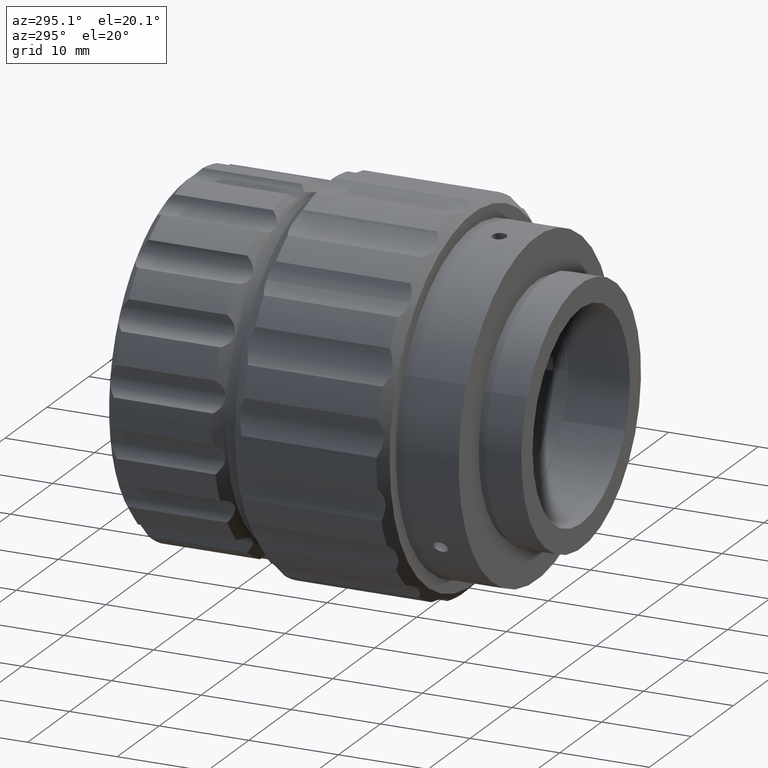
[diagram: clean part render]
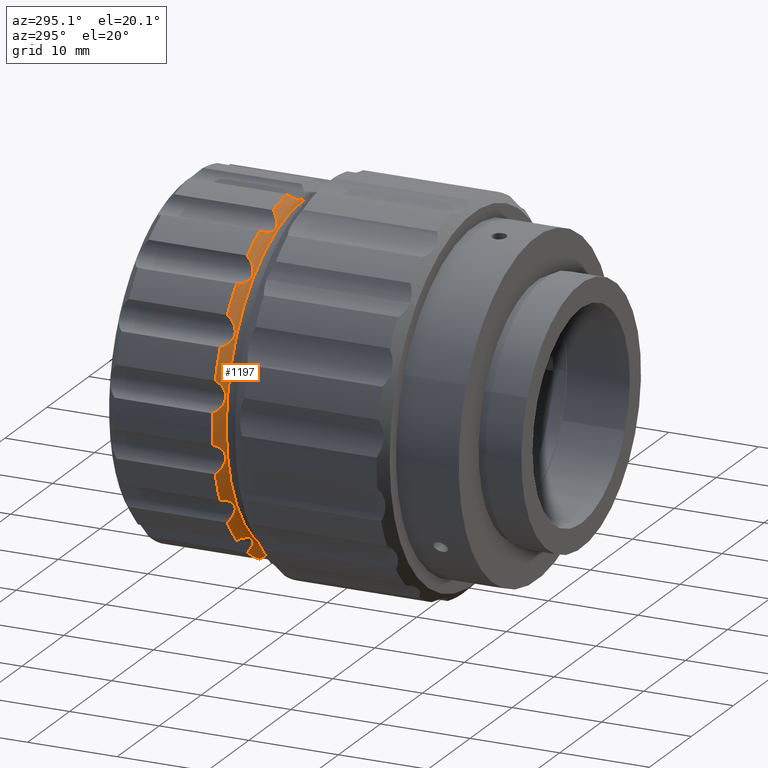
[diagram: same view with one face highlighted and labeled with its STEP entity id]
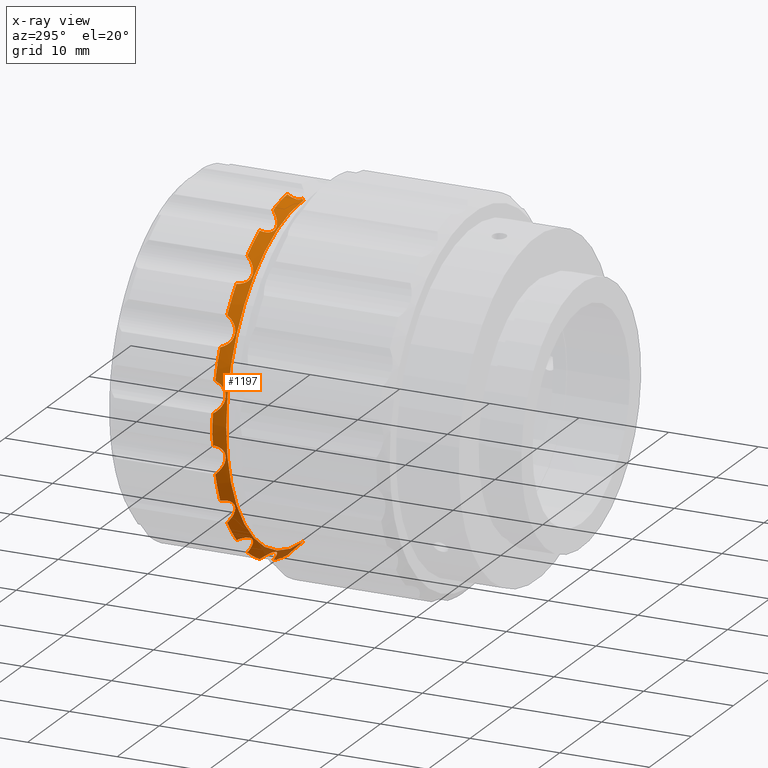
[diagram: x-ray of the same camera — body ghosted, the highlighted face saturated]
A machine part, auxiliary view. The second image highlights one B-rep face of the part: STEP entity #1197.
The next image is the same camera in x-ray: the body ghosted, the highlighted face saturated — about 5% of this face is hidden behind the body in this view.
In plain terms, the highlighted conical surface has half-angle 48.991 deg.
Its self-contained STEP definition (entity closure, byte-faithful):
#43 = CARTESIAN_POINT ( 'NONE',  ( 4.677159865975970554, -3.973528487452614222, 25.93564747629139333 ) ) ;
#62 = CARTESIAN_POINT ( 'NONE',  ( -5.371948253798003670, -4.230106375135292751, 59.79109129172136505 ) ) ;
#87 = VERTEX_POINT ( 'NONE', #7635 ) ;
#90 = CARTESIAN_POINT ( 'NONE',  ( 5.786634421897226765, -4.418320904396745519, 26.40330644533106863 ) ) ;
#115 = CARTESIAN_POINT ( 'NONE',  ( -6.221360305701106874, -4.392671165276509804, 58.85683238272568474 ) ) ;
#167 = CARTESIAN_POINT ( 'NONE',  ( -9.956924296763016713, -4.418247669615861462, 54.31427011864730758 ) ) ;
#193 = CARTESIAN_POINT ( 'NONE',  ( -12.81096954535987820, -4.068513700207486039, 42.77573742035156101 ) ) ;
#201 = ORIENTED_EDGE ( 'NONE', *, *, #8384, .T. ) ;
#220 = CARTESIAN_POINT ( 'NONE',  ( -5.199766127930072201, -3.771055225331868321, 60.57346578478398413 ) ) ;
#221 = CARTESIAN_POINT ( 'NONE',  ( -9.779764802678521107, -4.230106375135284758, 55.01349145681691510 ) ) ;
#363 = CARTESIAN_POINT ( 'NONE',  ( -10.25952300161827146, -4.392355287344224202, 35.96281535252073525 ) ) ;
#381 = CARTESIAN_POINT ( 'NONE',  ( -7.808471279802915888, -3.548755687005437753, 31.10631939944003932 ) ) ;
#411 = ORIENTED_EDGE ( 'NONE', *, *, #6683, .T. ) ;
#428 = CARTESIAN_POINT ( 'NONE',  ( -12.75781007245554832, -3.662834996469606974, 49.83897531652366553 ) ) ;
#461 = CARTESIAN_POINT ( 'NONE',  ( -10.14274525640943914, -4.418247669615867679, 35.81419411523364715 ) ) ;
#511 = CARTESIAN_POINT ( 'NONE',  ( 4.457103404541032710, -3.771268675681457072, 64.08799308601405187 ) ) ;
#531 = CARTESIAN_POINT ( 'NONE',  ( -5.215629282622811225, -3.907566260442469019, 29.43793715326682658 ) ) ;
#543 = CARTESIAN_POINT ( 'NONE',  ( 5.971701014312827738, -3.548755687005437753, 44.90330644533106863 ) ) ;
#560 = EDGE_CURVE ( 'NONE', #3509, #5643, #3505, .T. ) ;
#561 = B_SPLINE_CURVE_WITH_KNOTS ( 'NONE', 3,
 ( #1623, #5400, #7095, #5354, #4007, #4648 ),
 .UNSPECIFIED., .F., .F.,
 ( 4, 2, 4 ),
 ( 3.235133247552889068E-07, 0.0007555222576769132347, 0.001510721002029071164 ),
 .UNSPECIFIED. ) ;
#590 = CARTESIAN_POINT ( 'NONE',  ( 0.1944145688220586532, -4.327046641512397152, 27.21774438416232655 ) ) ;
#644 = CARTESIAN_POINT ( 'NONE',  ( 0.4040798112497523409, -4.230106375135290087, 62.77300455384768441 ) ) ;
#693 = AXIS2_PLACEMENT_3D ( 'NONE', #9875, #9153, #2130 ) ;
#723 = EDGE_CURVE ( 'NONE', #3050, #3434, #4897, .T. ) ;
#737 = VERTEX_POINT ( 'NONE', #6746 ) ;
#758 = ORIENTED_EDGE ( 'NONE', *, *, #4228, .T. ) ;
#762 = CARTESIAN_POINT ( 'NONE',  ( -13.45305572092108193, -3.548755687005437753, 43.19192519704508726 ) ) ;
#777 = EDGE_CURVE ( 'NONE', #5593, #7010, #4079, .T. ) ;
#792 = VERTEX_POINT ( 'NONE', #3104 ) ;
#828 = EDGE_CURVE ( 'NONE', #3434, #1717, #5090, .T. ) ;
#864 = ORIENTED_EDGE ( 'NONE', *, *, #9782, .T. ) ;
#887 = CARTESIAN_POINT ( 'NONE',  ( 5.971701014312827738, -3.548755687005437753, 44.90330644533106863 ) ) ;
#906 = CARTESIAN_POINT ( 'NONE',  ( 4.363390817103807606, -3.662877125560095148, 25.60131489701829821 ) ) ;
#929 = CARTESIAN_POINT ( 'NONE',  ( -7.808471279802826182, -3.548755687005437753, 58.70029349122219031 ) ) ;
#1000 = ORIENTED_EDGE ( 'NONE', *, *, #7515, .F. ) ;
#1053 = CARTESIAN_POINT ( 'NONE',  ( 4.457026003946652715, -3.771135249618358554, 25.71847389964025155 ) ) ;
#1056 = CARTESIAN_POINT ( 'NONE',  ( -12.59332350279357904, -4.230106375135292751, 42.52331043072143046 ) ) ;
#1082 = CARTESIAN_POINT ( 'NONE',  ( -10.94929220701702022, -4.069271803580885027, 53.32721674023608216 ) ) ;
#1097 = CARTESIAN_POINT ( 'NONE',  ( -12.21504979414907055, -4.418247669615866791, 48.29880885175551697 ) ) ;
#1105 = CARTESIAN_POINT ( 'NONE',  ( -12.86692641017151217, -3.548755687005437753, 39.86782069304594245 ) ) ;
#1142 = CARTESIAN_POINT ( 'NONE',  ( -12.33787943848981428, -4.392671165276514245, 47.75477871093554683 ) ) ;
#1150 = DIRECTION ( 'NONE',  ( -0.000000000000000000, -1.000000000000000000, -0.000000000000000000 ) ) ;
#1160 = DIRECTION ( 'NONE',  ( 0.000000000000000000, 0.6561787149247872986, 0.7546055221635041832 ) ) ;
#1174 = CARTESIAN_POINT ( 'NONE',  ( -11.54852367195953100, -3.662834996469612747, 36.64515049512208833 ) ) ;
#1197 = ADVANCED_FACE ( 'NONE', ( #2949 ), #2330, .T. ) ;
#1220 = CARTESIAN_POINT ( 'NONE',  ( -11.40029830523349474, -3.771055225331873206, 36.62265360417551818 ) ) ;
#1227 = DIRECTION ( 'NONE',  ( -0.000000000000000000, -1.000000000000000000, -0.000000000000000000 ) ) ;
#1236 = CARTESIAN_POINT ( 'NONE',  ( -12.28772210715284352, -4.230106375135296304, 49.01645409908781659 ) ) ;
#1273 = DIRECTION ( 'NONE',  ( 0.000000000000000000, 0.000000000000000000, 1.000000000000000000 ) ) ;
#1382 = CARTESIAN_POINT ( 'NONE',  ( -7.072934661501564690, -4.053467165836581287, 31.19939536139204606 ) ) ;
#1440 = CARTESIAN_POINT ( 'NONE',  ( -2.013009896214547734, -3.771348872113315487, 62.41293408283464572 ) ) ;
#1487 = CARTESIAN_POINT ( 'NONE',  ( -5.480984701344065790, -4.314917560482603776, 30.22280773866551584 ) ) ;
#1494 = CARTESIAN_POINT ( 'NONE',  ( 0.7009620014143991273, -3.973384359290080159, 63.17003920369418069 ) ) ;
#1541 = CARTESIAN_POINT ( 'NONE',  ( 0.2765343351341064126, -4.298448279280489004, 62.65053004991393237 ) ) ;
#1550 = B_SPLINE_CURVE_WITH_KNOTS ( 'NONE', 3,
 ( #5909, #1174, #1220, #4205, #1922, #5041, #7295, #363, #461, #2690, #2022, #5757, #8893, #6576, #3552, #9712, #8992, #2739 ),
 .UNSPECIFIED., .F., .F.,
 ( 4, 2, 2, 2, 2, 2, 2, 2, 4 ),
 ( 3.235133247597310122E-07, 0.0005539330953528013354, 0.001107542677380842812, 0.001661152259408884288, 0.002214761841436926199, 0.002768371423464967892, 0.003321981005493009152, 0.003875590587521050845, 0.004429200169549092105 ),
 .UNSPECIFIED. ) ;
#1623 = CARTESIAN_POINT ( 'NONE',  ( -2.258577716728105145, -3.548755687005437753, 27.22528302614261619 ) ) ;
#1642 = VERTEX_POINT ( 'NONE', #9030 ) ;
#1643 = ORIENTED_EDGE ( 'NONE', *, *, #4993, .T. ) ;
#1707 = CARTESIAN_POINT ( 'NONE',  ( -13.31638051958461944, -3.662834996469610527, 43.13544799591724654 ) ) ;
#1717 = VERTEX_POINT ( 'NONE', #9889 ) ;
#1737 = EDGE_CURVE ( 'NONE', #4889, #8536, #9195, .T. ) ;
#1752 = CARTESIAN_POINT ( 'NONE',  ( 5.599441832286628618, -4.392481889549249452, 26.37654007759314823 ) ) ;
#1825 = CARTESIAN_POINT ( 'NONE',  ( -9.807548804179457846, -3.973384359290082823, 55.50846983743190322 ) ) ;
#1847 = CARTESIAN_POINT ( 'NONE',  ( -12.20893757984293870, -4.392671165276513356, 41.32056856099485032 ) ) ;
#1922 = CARTESIAN_POINT ( 'NONE',  ( -10.95056444640559334, -4.068513700207488704, 36.47999385548708773 ) ) ;
#1980 = CARTESIAN_POINT ( 'NONE',  ( 5.971701014312827738, -3.548755687005437753, 44.90330644533106863 ) ) ;
#1995 = EDGE_CURVE ( 'NONE', #87, #5593, #6368, .T. ) ;
#2004 = CARTESIAN_POINT ( 'NONE',  ( -12.49485770127046891, -4.298448279280493445, 42.37643518256236064 ) ) ;
#2022 = CARTESIAN_POINT ( 'NONE',  ( -9.887142389091856387, -4.392671165276510692, 35.31848947548485285 ) ) ;
#2030 = ORIENTED_EDGE ( 'NONE', *, *, #3939, .T. ) ;
#2055 = CARTESIAN_POINT ( 'NONE',  ( -12.48228384711124583, -3.974377090660913936, 40.33588439322735297 ) ) ;
#2069 = VERTEX_POINT ( 'NONE', #3162 ) ;
#2092 = CARTESIAN_POINT ( 'NONE',  ( -1.039711923863394505, -4.302516684558123750, 27.63960771921995274 ) ) ;
#2130 = DIRECTION ( 'NONE',  ( 0.000000000000000000, 0.000000000000000000, -1.000000000000000000 ) ) ;
#2198 = B_SPLINE_CURVE_WITH_KNOTS ( 'NONE', 3,
 ( #7203, #3966, #8650, #1825, #3354, #221, #7105, #6427, #167, #7978, #2542, #6329, #8023, #1082, #8747, #5712, #7050, #5612 ),
 .UNSPECIFIED., .F., .F.,
 ( 4, 2, 2, 2, 2, 2, 2, 2, 4 ),
 ( 3.235133254005463770E-07, 0.0005539330953534425325, 0.001107542677381484009, 0.001661152259409525052, 0.002214761841437565878, 0.002768371423465607571, 0.003321981005493648397, 0.003875590587521689657, 0.004429200169549729615 ),
 .UNSPECIFIED. ) ;
#2222 = ORIENTED_EDGE ( 'NONE', *, *, #4814, .T. ) ;
#2244 = CARTESIAN_POINT ( 'NONE',  ( -6.660543839100342645, -4.253603731953620404, 31.12885731336848849 ) ) ;
#2330 = CONICAL_SURFACE ( 'NONE', #7511, 19.50000000000000355, 0.8550527371260157050 ) ;
#2445 = CARTESIAN_POINT ( 'NONE',  ( -5.262163089460625720, -4.068513700207486039, 60.10579178843199344 ) ) ;
#2460 = CARTESIAN_POINT ( 'NONE',  ( 5.971701014312827738, -3.548755687005437753, 44.90330644533106863 ) ) ;
#2542 = CARTESIAN_POINT ( 'NONE',  ( -10.25841567390049747, -4.392671165276506251, 53.84505922239571873 ) ) ;
#2587 = VERTEX_POINT ( 'NONE', #4849 ) ;
#2655 = CARTESIAN_POINT ( 'NONE',  ( -12.93152272895156507, -3.974377090660908607, 46.92296819418837828 ) ) ;
#2690 = CARTESIAN_POINT ( 'NONE',  ( -9.957612782937662388, -4.418393815353469201, 35.49383860657146528 ) ) ;
#2739 = CARTESIAN_POINT ( 'NONE',  ( -10.00858060349922241, -3.548755687005437753, 33.72830759005514523 ) ) ;
#2742 = DIRECTION ( 'NONE',  ( 0.000000000000000000, 0.000000000000000000, -1.000000000000000000 ) ) ;
#2769 = CARTESIAN_POINT ( 'NONE',  ( 4.284008927287831447, -3.548755687005437753, 64.33013571362374705 ) ) ;
#2808 = ORIENTED_EDGE ( 'NONE', *, *, #6010, .T. ) ;
#2837 = VERTEX_POINT ( 'NONE', #3709 ) ;
#2842 = CARTESIAN_POINT ( 'NONE',  ( 4.284008927287831447, -3.548755687005437753, 64.33013571362374705 ) ) ;
#2857 = CARTESIAN_POINT ( 'NONE',  ( -5.206601509068879530, -3.643741853323062330, 29.05873056079382266 ) ) ;
#2904 = ORIENTED_EDGE ( 'NONE', *, *, #1995, .T. ) ;
#2914 = CARTESIAN_POINT ( 'NONE',  ( -0.5287195526393428935, -4.418393815353464760, 62.22455511604391631 ) ) ;
#2949 = FACE_OUTER_BOUND ( 'NONE', #9814, .T. ) ;
#2963 = CARTESIAN_POINT ( 'NONE',  ( -0.5663486802192483349, -4.410044193024122983, 27.58654335925605139 ) ) ;
#3011 = CARTESIAN_POINT ( 'NONE',  ( -7.205444984261414554, -3.973601794820913469, 31.19939536139216330 ) ) ;
#3018 = CARTESIAN_POINT ( 'NONE',  ( -2.258577716727978579, -3.548755687005437753, 62.58132986451957436 ) ) ;
#3050 = VERTEX_POINT ( 'NONE', #7042 ) ;
#3061 = CARTESIAN_POINT ( 'NONE',  ( -5.867632561930433255, -4.423066189991026853, 30.69408168806941717 ) ) ;
#3085 = AXIS2_PLACEMENT_3D ( 'NONE', #2460, #3982, #5530 ) ;
#3103 = LINE ( 'NONE', #5461, #10051 ) ;
#3104 = CARTESIAN_POINT ( 'NONE',  ( -12.86692641017151217, -3.548755687005437753, 39.86782069304594245 ) ) ;
#3108 = AXIS2_PLACEMENT_3D ( 'NONE', #7162, #7110, #6282 ) ;
#3120 = CIRCLE ( 'NONE', #8802, 19.50000000000000000 ) ;
#3135 = CARTESIAN_POINT ( 'NONE',  ( -7.808471279802826182, -3.548755687005437753, 58.70029349122219031 ) ) ;
#3162 = CARTESIAN_POINT ( 'NONE',  ( -11.69627269052421070, -3.548755687005437753, 36.65147603231439177 ) ) ;
#3198 = AXIS2_PLACEMENT_3D ( 'NONE', #3981, #8508, #8664 ) ;
#3235 = EDGE_CURVE ( 'NONE', #4811, #3050, #6456, .T. ) ;
#3271 = AXIS2_PLACEMENT_3D ( 'NONE', #4854, #1227, #4307 ) ;
#3291 = ORIENTED_EDGE ( 'NONE', *, *, #9466, .T. ) ;
#3294 = EDGE_CURVE ( 'NONE', #8051, #87, #6330, .T. ) ;
#3296 = DIRECTION ( 'NONE',  ( 0.000000000000000000, 0.000000000000000000, -1.000000000000000000 ) ) ;
#3315 = AXIS2_PLACEMENT_3D ( 'NONE', #887, #7056, #4020 ) ;
#3354 = CARTESIAN_POINT ( 'NONE',  ( -9.784234402868552394, -4.068513700207480710, 55.34676192897524771 ) ) ;
#3417 = CARTESIAN_POINT ( 'NONE',  ( -13.31630365927038895, -3.662899149816271294, 46.67119665511836502 ) ) ;
#3434 = VERTEX_POINT ( 'NONE', #9473 ) ;
#3466 = CARTESIAN_POINT ( 'NONE',  ( -7.205444984261414554, -3.973601794820913469, 31.19939536139216330 ) ) ;
#3469 = EDGE_CURVE ( 'NONE', #792, #2069, #8133, .T. ) ;
#3484 = B_SPLINE_CURVE_WITH_KNOTS ( 'NONE', 3,
 ( #8169, #7499, #3650, #6678, #9763, #8942, #5808, #511, #5709, #2842 ),
 .UNSPECIFIED., .F., .F.,
 ( 4, 2, 2, 2, 4 ),
 ( 0.002215579625776019183, 0.002768984761719295654, 0.003322389897662572124, 0.003875795033605848160, 0.004429200169549125064 ),
 .UNSPECIFIED. ) ;
#3505 = CIRCLE ( 'NONE', #9028, 19.50000000000000000 ) ;
#3509 = VERTEX_POINT ( 'NONE', #4165 ) ;
#3514 = AXIS2_PLACEMENT_3D ( 'NONE', #4054, #4841, #3296 ) ;
#3519 = CARTESIAN_POINT ( 'NONE',  ( -12.48312310502022804, -3.973384359290088153, 49.47207894262480465 ) ) ;
#3529 = CARTESIAN_POINT ( 'NONE',  ( -12.28746054413084821, -4.230513494785397732, 40.79113171102594038 ) ) ;
#3552 = CARTESIAN_POINT ( 'NONE',  ( -9.807222039172902583, -3.974377090660905498, 34.29969909972036390 ) ) ;
#3570 = CARTESIAN_POINT ( 'NONE',  ( -12.27915064326802330, -4.418393815353469201, 47.93440143442403212 ) ) ;
#3650 = CARTESIAN_POINT ( 'NONE',  ( 5.599763903776332263, -4.392544022178459961, 63.43000826587537233 ) ) ;
#3657 = DIRECTION ( 'NONE',  ( 0.000000000000000000, 1.000000000000000000, 0.000000000000000000 ) ) ;
#3671 = CARTESIAN_POINT ( 'NONE',  ( 0.5930888864356698154, -4.095029038024961210, 26.81359678545231517 ) ) ;
#3709 = CARTESIAN_POINT ( 'NONE',  ( 4.284008927287830559, -3.548755687005437753, 25.47647717703838310 ) ) ;
#3722 = CARTESIAN_POINT ( 'NONE',  ( -0.9225061060174057914, -4.340867094940177751, 27.63960771921995274 ) ) ;
#3781 = CARTESIAN_POINT ( 'NONE',  ( -0.01444145795316569870, -4.392355287344217984, 62.44044168281193663 ) ) ;
#3797 = CARTESIAN_POINT ( 'NONE',  ( -5.222776989880073550, -3.548755687005437753, 60.86994861623354325 ) ) ;
#3844 = CIRCLE ( 'NONE', #3514, 18.35000000000000142 ) ;
#3870 = DIRECTION ( 'NONE',  ( 9.241252373364524550E-17, 0.6561787149247872986, -0.7546055221635041832 ) ) ;
#3917 = CARTESIAN_POINT ( 'NONE',  ( -7.520118261576554275, -3.771348872113314599, 58.62604235896956340 ) ) ;
#3939 = EDGE_CURVE ( 'NONE', #1717, #4889, #561, .T. ) ;
#3945 = ORIENTED_EDGE ( 'NONE', *, *, #3469, .T. ) ;
#3965 = CARTESIAN_POINT ( 'NONE',  ( -5.651486401293491113, -4.392355287344218873, 59.33544171138407108 ) ) ;
#3966 = CARTESIAN_POINT ( 'NONE',  ( -9.940184170117930762, -3.662834996469602089, 55.94718812854971191 ) ) ;
#3981 = CARTESIAN_POINT ( 'NONE',  ( 5.971701014312827738, -3.548755687005437753, 44.90330644533106863 ) ) ;
#3982 = DIRECTION ( 'NONE',  ( -0.000000000000000000, -1.000000000000000000, -0.000000000000000000 ) ) ;
#4007 = CARTESIAN_POINT ( 'NONE',  ( -1.282341543983721133, -4.223126892537021781, 27.63960771921995274 ) ) ;
#4020 = DIRECTION ( 'NONE',  ( 0.000000000000000000, 0.000000000000000000, -1.000000000000000000 ) ) ;
#4041 = CARTESIAN_POINT ( 'NONE',  ( -13.18478862612481350, -3.771055225331871430, 43.06361177233198134 ) ) ;
#4047 = ORIENTED_EDGE ( 'NONE', *, *, #1737, .T. ) ;
#4054 = CARTESIAN_POINT ( 'NONE',  ( 5.971701014312827738, -4.548755687005437309, 44.90330644533106863 ) ) ;
#4064 = CARTESIAN_POINT ( 'NONE',  ( -5.203350080123193777, -3.662834996469610083, 60.72334581924488361 ) ) ;
#4079 = B_SPLINE_CURVE_WITH_KNOTS ( 'NONE', 3,
 ( #5363, #4064, #220, #8696, #2445, #62, #5462, #3965, #6224, #7869, #115, #6999, #4803, #7774, #8594, #3917, #9415, #929 ),
 .UNSPECIFIED., .F., .F.,
 ( 4, 2, 2, 2, 2, 2, 2, 2, 4 ),
 ( 3.235133247590405216E-07, 0.0005539330953528004680, 0.001107542677380841945, 0.001661152259408883421, 0.002214761841436924898, 0.002768371423464966157, 0.003321981005493007851, 0.003875590587521049544, 0.004429200169549091237 ),
 .UNSPECIFIED. ) ;
#4154 = EDGE_CURVE ( 'NONE', #8536, #2837, #5518, .T. ) ;
#4165 = CARTESIAN_POINT ( 'NONE',  ( -13.45305572092107127, -3.548755687005437753, 46.61468769361717790 ) ) ;
#4175 = CARTESIAN_POINT ( 'NONE',  ( -12.80997845856519390, -4.069271803580892133, 47.03187226084381933 ) ) ;
#4205 = CARTESIAN_POINT ( 'NONE',  ( -11.10226480377737879, -3.973384359290088153, 36.54065694590614299 ) ) ;
#4228 = EDGE_CURVE ( 'NONE', #5834, #8051, #8140, .T. ) ;
#4232 = DIRECTION ( 'NONE',  ( 0.000000000000000000, 0.000000000000000000, -1.000000000000000000 ) ) ;
#4252 = ORIENTED_EDGE ( 'NONE', *, *, #828, .T. ) ;
#4307 = DIRECTION ( 'NONE',  ( 0.000000000000000000, 0.000000000000000000, -1.000000000000000000 ) ) ;
#4368 = CARTESIAN_POINT ( 'NONE',  ( -5.235328692796350047, -3.990168597077730528, 29.56955616298906264 ) ) ;
#4438 = DIRECTION ( 'NONE',  ( -0.000000000000000000, -1.000000000000000000, -0.000000000000000000 ) ) ;
#4475 = CARTESIAN_POINT ( 'NONE',  ( -0.7136417918881918787, -4.392671165276510692, 62.18560438289540571 ) ) ;
#4493 = DIRECTION ( 'NONE',  ( 0.000000000000000000, 0.000000000000000000, -1.000000000000000000 ) ) ;
#4497 = VECTOR ( 'NONE', #1160, 1000.000000000000000 ) ;
#4525 = CARTESIAN_POINT ( 'NONE',  ( -1.248670676121527823, -4.230513494785393291, 62.17099866272882025 ) ) ;
#4558 = VERTEX_POINT ( 'NONE', #8709 ) ;
#4642 = CARTESIAN_POINT ( 'NONE',  ( 5.971701014312830402, -4.548755687005437309, 63.25330644533107005 ) ) ;
#4648 = CARTESIAN_POINT ( 'NONE',  ( -1.039711923863394505, -4.302516684558123750, 27.63960771921995274 ) ) ;
#4704 = CARTESIAN_POINT ( 'NONE',  ( 5.971701014312827738, -4.548755687005437309, 26.55330644533106721 ) ) ;
#4732 = CARTESIAN_POINT ( 'NONE',  ( 5.092149987826767976, -4.230295088982533258, 26.20724258423378217 ) ) ;
#4803 = CARTESIAN_POINT ( 'NONE',  ( -6.719127549617737394, -4.230513494785394180, 58.66011683959502676 ) ) ;
#4811 = VERTEX_POINT ( 'NONE', #8250 ) ;
#4814 = EDGE_CURVE ( 'NONE', #9172, #737, #3120, .T. ) ;
#4820 = ORIENTED_EDGE ( 'NONE', *, *, #560, .T. ) ;
#4827 = CARTESIAN_POINT ( 'NONE',  ( 5.253986418364525512, -4.298633637632979010, 26.27870336994616451 ) ) ;
#4841 = DIRECTION ( 'NONE',  ( -0.000000000000000000, -1.000000000000000000, -0.000000000000000000 ) ) ;
#4849 = CARTESIAN_POINT ( 'NONE',  ( -10.00858060349914602, -3.548755687005437753, 56.07830530060711283 ) ) ;
#4854 = CARTESIAN_POINT ( 'NONE',  ( 5.971701014312827738, -3.548755687005437753, 44.90330644533106863 ) ) ;
#4871 = CARTESIAN_POINT ( 'NONE',  ( 4.284008927287830559, -3.548755687005437753, 25.47647717703838310 ) ) ;
#4889 = VERTEX_POINT ( 'NONE', #7899 ) ;
#4897 = B_SPLINE_CURVE_WITH_KNOTS ( 'NONE', 3,
 ( #3011, #1382, #6694, #2244, #10037, #7466, #7518, #3061, #8441, #7675, #1487, #6132, #5106, #4368, #531, #9831, #2857, #5924 ),
 .UNSPECIFIED., .F., .F.,
 ( 4, 2, 2, 2, 2, 2, 2, 2, 4 ),
 ( 0.0007436451293488567389, 0.001204339509373890307, 0.001665033889398923658, 0.002125728269423957442, 0.002586422649448990793, 0.003047117029474024144, 0.003507811409499057495, 0.003968505789524090846, 0.004429200169549124197 ),
 .UNSPECIFIED. ) ;
#4993 = EDGE_CURVE ( 'NONE', #2587, #9172, #2198, .T. ) ;
#5023 = CARTESIAN_POINT ( 'NONE',  ( 0.9132458839442139098, -3.548755687005437753, 26.07083364715484208 ) ) ;
#5041 = CARTESIAN_POINT ( 'NONE',  ( -10.65970895109022365, -4.230106375135294527, 36.31722940671723165 ) ) ;
#5063 = CARTESIAN_POINT ( 'NONE',  ( -7.619150267689664524, -3.701927921407845989, 31.16618835401031262 ) ) ;
#5090 = CIRCLE ( 'NONE', #8531, 19.50000000000000000 ) ;
#5106 = CARTESIAN_POINT ( 'NONE',  ( -5.303299011562976339, -4.138542128765046790, 29.83202315044504616 ) ) ;
#5109 = CARTESIAN_POINT ( 'NONE',  ( -12.59274495590165266, -4.230513494785399509, 47.28412724534775435 ) ) ;
#5133 = CARTESIAN_POINT ( 'NONE',  ( 5.971701014312827738, -3.548755687005437753, 44.90330644533106863 ) ) ;
#5163 = CARTESIAN_POINT ( 'NONE',  ( 0.4568445305703507930, -4.205327521911409683, 26.98669825494011221 ) ) ;
#5164 = CARTESIAN_POINT ( 'NONE',  ( 0.9132458839443395870, -3.548755687005437753, 63.73577924350733070 ) ) ;
#5267 = CARTESIAN_POINT ( 'NONE',  ( -0.8044406430298168820, -4.370453667486703608, 27.62940131939334876 ) ) ;
#5321 = CARTESIAN_POINT ( 'NONE',  ( 0.8334659206107009055, -3.771055225331862548, 63.44930633630226424 ) ) ;
#5354 = CARTESIAN_POINT ( 'NONE',  ( -1.509160600168722111, -4.110216990204725640, 27.59588151850183024 ) ) ;
#5363 = CARTESIAN_POINT ( 'NONE',  ( -5.222776989880073550, -3.548755687005437753, 60.86994861623354325 ) ) ;
#5385 = EDGE_CURVE ( 'NONE', #7981, #10047, #3844, .T. ) ;
#5400 = CARTESIAN_POINT ( 'NONE',  ( -2.098635104727121892, -3.704375376513520557, 27.34822659330187378 ) ) ;
#5461 = CARTESIAN_POINT ( 'NONE',  ( 5.971701014312830402, -3.548755687005437753, 25.40330644533106863 ) ) ;
#5462 = CARTESIAN_POINT ( 'NONE',  ( -5.449913049129346376, -4.298448279280489892, 59.63237978211881796 ) ) ;
#5473 = ORIENTED_EDGE ( 'NONE', *, *, #3235, .T. ) ;
#5502 = ORIENTED_EDGE ( 'NONE', *, *, #9906, .T. ) ;
#5518 = CIRCLE ( 'NONE', #3271, 19.50000000000000000 ) ;
#5530 = DIRECTION ( 'NONE',  ( 0.000000000000000000, 0.000000000000000000, -1.000000000000000000 ) ) ;
#5588 = CARTESIAN_POINT ( 'NONE',  ( 4.805612467506239049, -4.068682995440005001, 26.03671793740476303 ) ) ;
#5593 = VERTEX_POINT ( 'NONE', #3797 ) ;
#5612 = CARTESIAN_POINT ( 'NONE',  ( -11.69627269052415208, -3.548755687005437753, 53.15513685834787339 ) ) ;
#5643 = VERTEX_POINT ( 'NONE', #762 ) ;
#5647 = CIRCLE ( 'NONE', #3085, 19.50000000000000000 ) ;
#5709 = CARTESIAN_POINT ( 'NONE',  ( 4.363376815874540959, -3.662856997034180662, 64.20532001228738750 ) ) ;
#5712 = CARTESIAN_POINT ( 'NONE',  ( -11.39991410422043927, -3.771348872113315487, 53.18398615790720640 ) ) ;
#5757 = CARTESIAN_POINT ( 'NONE',  ( -9.798931431818187932, -4.298905402658923514, 34.97020497928114224 ) ) ;
#5776 = CARTESIAN_POINT ( 'NONE',  ( -12.49417888365377571, -4.298905402658929731, 47.43127639762012393 ) ) ;
#5808 = CARTESIAN_POINT ( 'NONE',  ( 4.677993424129187616, -3.974232348476185006, 63.87021289834004989 ) ) ;
#5829 = CARTESIAN_POINT ( 'NONE',  ( -12.40590737212308348, -4.068513700207488704, 49.32809720920325702 ) ) ;
#5831 = CARTESIAN_POINT ( 'NONE',  ( 0.8016867575437114368, -3.839913992553273037, 26.44802574837231290 ) ) ;
#5834 = VERTEX_POINT ( 'NONE', #2769 ) ;
#5843 = ORIENTED_EDGE ( 'NONE', *, *, #6748, .T. ) ;
#5877 = CARTESIAN_POINT ( 'NONE',  ( -12.24542881348815548, -4.298448279280493445, 48.84475922466704390 ) ) ;
#5909 = CARTESIAN_POINT ( 'NONE',  ( -11.69627269052421070, -3.548755687005437753, 36.65147603231439177 ) ) ;
#5917 = ORIENTED_EDGE ( 'NONE', *, *, #4154, .T. ) ;
#5924 = CARTESIAN_POINT ( 'NONE',  ( -5.222776989880182796, -3.548755687005437753, 28.93666427442866862 ) ) ;
#5929 = CARTESIAN_POINT ( 'NONE',  ( -1.071952735984375238, -4.298905402658922625, 62.15921251634707545 ) ) ;
#5981 = CARTESIAN_POINT ( 'NONE',  ( 0.8711989537813035200, -3.699189010929162968, 26.26125791257238262 ) ) ;
#6010 = EDGE_CURVE ( 'NONE', #7010, #2587, #6410, .T. ) ;
#6132 = CARTESIAN_POINT ( 'NONE',  ( -5.351108640306266651, -4.204423642794407279, 29.96265998444424028 ) ) ;
#6224 = CARTESIAN_POINT ( 'NONE',  ( -5.777571505388506168, -4.418247669615865902, 59.19463027550560241 ) ) ;
#6282 = DIRECTION ( 'NONE',  ( 0.000000000000000000, 0.000000000000000000, -1.000000000000000000 ) ) ;
#6329 = CARTESIAN_POINT ( 'NONE',  ( -10.51593341672034043, -4.298905402658923514, 53.59452404440275330 ) ) ;
#6330 = B_SPLINE_CURVE_WITH_KNOTS ( 'NONE', 3,
 ( #5164, #9993, #5321, #1494, #8498, #644, #1541, #3781, #7729, #2914, #4475, #5929, #4525, #9891, #8447, #1440, #6856, #3018 ),
 .UNSPECIFIED., .F., .F.,
 ( 4, 2, 2, 2, 2, 2, 2, 2, 4 ),
 ( 3.235133248970089009E-07, 0.0005539330953529447753, 0.001107542677380993299, 0.001661152259409041715, 0.002214761841437078854, 0.002768371423465115343, 0.003321981005493152700, 0.003875590587521189189, 0.004429200169549226546 ),
 .UNSPECIFIED. ) ;
#6368 = CIRCLE ( 'NONE', #3315, 19.50000000000000000 ) ;
#6410 = CIRCLE ( 'NONE', #3198, 19.50000000000000000 ) ;
#6427 = CARTESIAN_POINT ( 'NONE',  ( -9.886603402334950275, -4.392355287344216208, 54.48971323123833344 ) ) ;
#6456 = B_SPLINE_CURVE_WITH_KNOTS ( 'NONE', 3,
 ( #381, #5063, #8191, #3466 ),
 .UNSPECIFIED., .F., .F.,
 ( 4, 4 ),
 ( 3.235133247838146471E-07, 0.0007436451293488567389 ),
 .UNSPECIFIED. ) ;
#6463 = LINE ( 'NONE', #8829, #4497 ) ;
#6476 = CARTESIAN_POINT ( 'NONE',  ( 5.971701014312827738, -3.548755687005437753, 44.90330644533106863 ) ) ;
#6491 = CARTESIAN_POINT ( 'NONE',  ( 5.971701014312830402, -4.418320904396746407, 26.40330644533107218 ) ) ;
#6494 = CARTESIAN_POINT ( 'NONE',  ( -13.45305572092107127, -3.548755687005437753, 46.61468769361717790 ) ) ;
#6543 = CARTESIAN_POINT ( 'NONE',  ( -12.86692641017147665, -3.548755687005437753, 49.93879219761632271 ) ) ;
#6553 = CARTESIAN_POINT ( 'NONE',  ( -12.40531697761661079, -4.069271803580889468, 40.47979132981502204 ) ) ;
#6576 = CARTESIAN_POINT ( 'NONE',  ( -9.784115910941066474, -4.069271803580888580, 34.46125160584760749 ) ) ;
#6594 = CARTESIAN_POINT ( 'NONE',  ( -0.2184185518006204751, -4.416715507671765906, 27.46726389313939976 ) ) ;
#6605 = CARTESIAN_POINT ( 'NONE',  ( -12.75774871007293321, -3.662899149816273070, 39.96769370690275736 ) ) ;
#6678 = CARTESIAN_POINT ( 'NONE',  ( 5.254213852268726725, -4.298720746254985237, 63.52781848441547652 ) ) ;
#6683 = EDGE_CURVE ( 'NONE', #1642, #5834, #3484, .T. ) ;
#6694 = CARTESIAN_POINT ( 'NONE',  ( -6.935656841035608977, -4.127242061309645216, 31.18608986228978708 ) ) ;
#6746 = CARTESIAN_POINT ( 'NONE',  ( -12.86692641017147665, -3.548755687005437753, 49.93879219761632271 ) ) ;
#6748 = EDGE_CURVE ( 'NONE', #2069, #4558, #1550, .T. ) ;
#6856 = CARTESIAN_POINT ( 'NONE',  ( -2.141263489701116907, -3.662899149816269073, 62.49115358586077917 ) ) ;
#6876 = CARTESIAN_POINT ( 'NONE',  ( -11.69627269052415208, -3.548755687005437753, 53.15513685834787339 ) ) ;
#6887 = CARTESIAN_POINT ( 'NONE',  ( 0.9132458839443395870, -3.548755687005437753, 63.73577924350733070 ) ) ;
#6999 = CARTESIAN_POINT ( 'NONE',  ( -6.549035905835634885, -4.298905402658923514, 58.70948258002653120 ) ) ;
#7010 = VERTEX_POINT ( 'NONE', #3135 ) ;
#7042 = CARTESIAN_POINT ( 'NONE',  ( -7.205444984261414554, -3.973601794820913469, 31.19939536139216330 ) ) ;
#7050 = CARTESIAN_POINT ( 'NONE',  ( -11.54844058420191288, -3.662899149816270850, 53.16146595275296960 ) ) ;
#7056 = DIRECTION ( 'NONE',  ( -0.000000000000000000, -1.000000000000000000, -0.000000000000000000 ) ) ;
#7070 = EDGE_CURVE ( 'NONE', #7981, #1642, #6463, .T. ) ;
#7095 = CARTESIAN_POINT ( 'NONE',  ( -1.919043777341497892, -3.849318426745693689, 27.44907303496942674 ) ) ;
#7105 = CARTESIAN_POINT ( 'NONE',  ( -9.798745212270777216, -4.298448279280489892, 54.83768589193601173 ) ) ;
#7110 = DIRECTION ( 'NONE',  ( -0.000000000000000000, -1.000000000000000000, -0.000000000000000000 ) ) ;
#7162 = CARTESIAN_POINT ( 'NONE',  ( 5.971701014312827738, -3.548755687005437753, 44.90330644533106863 ) ) ;
#7203 = CARTESIAN_POINT ( 'NONE',  ( -10.00858060349914602, -3.548755687005437753, 56.07830530060711283 ) ) ;
#7265 = CARTESIAN_POINT ( 'NONE',  ( -13.18443678583505729, -3.771348872113316375, 46.74315777369132263 ) ) ;
#7295 = CARTESIAN_POINT ( 'NONE',  ( -10.51694707057282407, -4.298448279280495221, 36.21288910739567513 ) ) ;
#7328 = CARTESIAN_POINT ( 'NONE',  ( -12.65844653426784028, -3.771348872113321260, 40.08041616596149481 ) ) ;
#7466 = CARTESIAN_POINT ( 'NONE',  ( -6.246941183677928500, -4.385213305421419960, 30.96109429207334784 ) ) ;
#7499 = CARTESIAN_POINT ( 'NONE',  ( 5.786771060329334304, -4.418320904396741966, 63.40330644533108284 ) ) ;
#7511 = AXIS2_PLACEMENT_3D ( 'NONE', #1980, #3657, #1273 ) ;
#7515 = EDGE_CURVE ( 'NONE', #10047, #8789, #3103, .T. ) ;
#7518 = CARTESIAN_POINT ( 'NONE',  ( -6.112842164766374431, -4.409658156517078709, 30.88167012234247366 ) ) ;
#7524 = CARTESIAN_POINT ( 'NONE',  ( 0.09944413488205613993, -4.359171128693542840, 27.28791617799790714 ) ) ;
#7635 = CARTESIAN_POINT ( 'NONE',  ( -2.258577716727978579, -3.548755687005437753, 62.58132986451957436 ) ) ;
#7675 = CARTESIAN_POINT ( 'NONE',  ( -5.561700049757349440, -4.357900374931378273, 30.34896643070302957 ) ) ;
#7729 = CARTESIAN_POINT ( 'NONE',  ( -0.1810830473433097942, -4.418247669615862350, 62.35124586096849697 ) ) ;
#7774 = CARTESIAN_POINT ( 'NONE',  ( -7.047684445713211510, -4.069271803580886804, 58.60651331438767642 ) ) ;
#7842 = B_SPLINE_CURVE_WITH_KNOTS ( 'NONE', 3,
 ( #8676, #1707, #4041, #7996, #193, #1056, #2004, #9689, #8047, #8203, #1847, #8872, #3529, #6553, #2055, #7328, #6605, #1105 ),
 .UNSPECIFIED., .F., .F.,
 ( 4, 2, 2, 2, 2, 2, 2, 2, 4 ),
 ( 3.235133247567962548E-07, 0.0005539330953527988417, 0.001107542677380841511, 0.001661152259408884072, 0.002214761841436926632, 0.002768371423464969193, 0.003321981005493011754, 0.003875590587521054314, 0.004429200169549097309 ),
 .UNSPECIFIED. ) ;
#7845 = CARTESIAN_POINT ( 'NONE',  ( 5.971701014312830402, -4.418320904396746407, 26.40330644533107218 ) ) ;
#7869 = CARTESIAN_POINT ( 'NONE',  ( -6.060912177393848133, -4.418393815353469201, 58.95668123001151883 ) ) ;
#7899 = CARTESIAN_POINT ( 'NONE',  ( -1.039711923863394505, -4.302516684558123750, 27.63960771921995274 ) ) ;
#7978 = CARTESIAN_POINT ( 'NONE',  ( -10.14179406877086542, -4.418393815353465648, 53.99376293922419023 ) ) ;
#7981 = VERTEX_POINT ( 'NONE', #4642 ) ;
#7996 = CARTESIAN_POINT ( 'NONE',  ( -12.93277325287302304, -3.973384359290088153, 42.88462665674328633 ) ) ;
#8023 = CARTESIAN_POINT ( 'NONE',  ( -10.65888320162196301, -4.230513494785391515, 53.48996065401475875 ) ) ;
#8037 = CARTESIAN_POINT ( 'NONE',  ( -12.20897484708183711, -4.392355287344223314, 48.48772261241612824 ) ) ;
#8047 = CARTESIAN_POINT ( 'NONE',  ( -12.27958473617891144, -4.418247669615864126, 41.87379988237054107 ) ) ;
#8051 = VERTEX_POINT ( 'NONE', #6887 ) ;
#8077 = B_SPLINE_CURVE_WITH_KNOTS ( 'NONE', 3,
 ( #6543, #428, #8091, #3519, #5829, #1236, #5877, #8037, #1097, #3570, #1142, #5776, #5109, #4175, #2655, #7265, #3417, #6494 ),
 .UNSPECIFIED., .F., .F.,
 ( 4, 2, 2, 2, 2, 2, 2, 2, 4 ),
 ( 3.235133247560398544E-07, 0.0005539330953527996006, 0.001107542677380843029, 0.001661152259408886674, 0.002214761841436930102, 0.002768371423464973530, 0.003321981005493017391, 0.003875590587521060820, 0.004429200169549104248 ),
 .UNSPECIFIED. ) ;
#8091 = CARTESIAN_POINT ( 'NONE',  ( -12.65872357670273729, -3.771055225331872762, 49.72646426905387784 ) ) ;
#8116 = B_SPLINE_CURVE_WITH_KNOTS ( 'NONE', 3,
 ( #4871, #906, #1053, #43, #5588, #4732, #4827, #1752, #90, #7845 ),
 .UNSPECIFIED., .F., .F.,
 ( 4, 2, 2, 2, 4 ),
 ( 3.235133247924165843E-07, 0.0005541375414376003856, 0.001107951569550407519, 0.001661765597663214652, 0.002215579625776021785 ),
 .UNSPECIFIED. ) ;
#8133 = CIRCLE ( 'NONE', #3108, 19.50000000000000000 ) ;
#8140 = CIRCLE ( 'NONE', #693, 19.50000000000000000 ) ;
#8169 = CARTESIAN_POINT ( 'NONE',  ( 5.971701014312827738, -4.418320904396740190, 63.40330644533106863 ) ) ;
#8191 = CARTESIAN_POINT ( 'NONE',  ( -7.419247868612435681, -3.844740538374577632, 31.19939536139202829 ) ) ;
#8203 = CARTESIAN_POINT ( 'NONE',  ( -12.21518515397744409, -4.418393815353467424, 41.50944513974152983 ) ) ;
#8215 = ORIENTED_EDGE ( 'NONE', *, *, #3294, .T. ) ;
#8250 = CARTESIAN_POINT ( 'NONE',  ( -7.808471279802915888, -3.548755687005437753, 31.10631939944003932 ) ) ;
#8384 = EDGE_CURVE ( 'NONE', #2837, #8789, #8116, .T. ) ;
#8395 = CARTESIAN_POINT ( 'NONE',  ( -0.4463887103259850941, -4.419629558824294868, 27.55345657880572929 ) ) ;
#8441 = CARTESIAN_POINT ( 'NONE',  ( -5.755697614381888094, -4.412321199966345198, 30.58562896963847777 ) ) ;
#8447 = CARTESIAN_POINT ( 'NONE',  ( -1.730832475757194899, -3.974377090660909495, 62.28380929484789874 ) ) ;
#8498 = CARTESIAN_POINT ( 'NONE',  ( 0.6148780290389833647, -4.068513700207484263, 63.03117755072263861 ) ) ;
#8508 = DIRECTION ( 'NONE',  ( -0.000000000000000000, -1.000000000000000000, -0.000000000000000000 ) ) ;
#8531 = AXIS2_PLACEMENT_3D ( 'NONE', #6476, #8897, #2742 ) ;
#8536 = VERTEX_POINT ( 'NONE', #5023 ) ;
#8594 = CARTESIAN_POINT ( 'NONE',  ( -7.210794943326246376, -3.974377090660908607, 58.60121511032595265 ) ) ;
#8640 = ORIENTED_EDGE ( 'NONE', *, *, #7070, .T. ) ;
#8650 = CARTESIAN_POINT ( 'NONE',  ( -9.885554365820823364, -3.771055225331866989, 55.80757275000642181 ) ) ;
#8664 = DIRECTION ( 'NONE',  ( 0.000000000000000000, 0.000000000000000000, -1.000000000000000000 ) ) ;
#8676 = CARTESIAN_POINT ( 'NONE',  ( -13.45305572092108193, -3.548755687005437753, 43.19192519704508726 ) ) ;
#8696 = CARTESIAN_POINT ( 'NONE',  ( -5.228764098303273045, -3.973384359290083712, 60.26572151160935675 ) ) ;
#8707 = ORIENTED_EDGE ( 'NONE', *, *, #723, .T. ) ;
#8709 = CARTESIAN_POINT ( 'NONE',  ( -10.00858060349922241, -3.548755687005437753, 33.72830759005514523 ) ) ;
#8747 = CARTESIAN_POINT ( 'NONE',  ( -11.10075384548415478, -3.974377090660908607, 53.26645098120434341 ) ) ;
#8789 = VERTEX_POINT ( 'NONE', #6491 ) ;
#8802 = AXIS2_PLACEMENT_3D ( 'NONE', #543, #1150, #4232 ) ;
#8829 = CARTESIAN_POINT ( 'NONE',  ( 5.971701014312827738, -3.548755687005437753, 64.40330644533106863 ) ) ;
#8872 = CARTESIAN_POINT ( 'NONE',  ( -12.24516670753011560, -4.298905402658929731, 40.96311826572846115 ) ) ;
#8893 = CARTESIAN_POINT ( 'NONE',  ( -9.779851771887187795, -4.230513494785394180, 34.79412513889683112 ) ) ;
#8897 = DIRECTION ( 'NONE',  ( -0.000000000000000000, -1.000000000000000000, -0.000000000000000000 ) ) ;
#8942 = CARTESIAN_POINT ( 'NONE',  ( 4.806284335128080620, -4.069103363047638311, 63.76945023511938615 ) ) ;
#8981 = ORIENTED_EDGE ( 'NONE', *, *, #777, .T. ) ;
#8992 = CARTESIAN_POINT ( 'NONE',  ( -9.940145706875883391, -3.662899149816267741, 33.85949849682770463 ) ) ;
#9028 = AXIS2_PLACEMENT_3D ( 'NONE', #5133, #4438, #4493 ) ;
#9030 = CARTESIAN_POINT ( 'NONE',  ( 5.971701014312827738, -4.418320904396740190, 63.40330644533106863 ) ) ;
#9115 = CARTESIAN_POINT ( 'NONE',  ( 0.9132458839442139098, -3.548755687005437753, 26.07083364715484208 ) ) ;
#9153 = DIRECTION ( 'NONE',  ( -0.000000000000000000, -1.000000000000000000, -0.000000000000000000 ) ) ;
#9172 = VERTEX_POINT ( 'NONE', #6876 ) ;
#9195 = B_SPLINE_CURVE_WITH_KNOTS ( 'NONE', 3,
 ( #2092, #3722, #5267, #2963, #8395, #6594, #9734, #7524, #590, #5163, #3671, #5831, #5981, #9115 ),
 .UNSPECIFIED., .F., .F.,
 ( 4, 2, 2, 2, 2, 2, 4 ),
 ( 0.001510721002029071164, 0.001875530897969074568, 0.002240340793909077755, 0.002605150689849081158, 0.002969960585789084562, 0.003699580377669091369, 0.004429200169549098176 ),
 .UNSPECIFIED. ) ;
#9415 = CARTESIAN_POINT ( 'NONE',  ( -7.667389862601024397, -3.662899149816269517, 58.65567933633846565 ) ) ;
#9466 = EDGE_CURVE ( 'NONE', #5643, #792, #7842, .T. ) ;
#9473 = CARTESIAN_POINT ( 'NONE',  ( -5.222776989880182796, -3.548755687005437753, 28.93666427442866862 ) ) ;
#9689 = CARTESIAN_POINT ( 'NONE',  ( -12.33848846474550065, -4.392355287344221537, 42.05339850349484720 ) ) ;
#9711 = ORIENTED_EDGE ( 'NONE', *, *, #5385, .F. ) ;
#9712 = CARTESIAN_POINT ( 'NONE',  ( -9.885385536647147475, -3.771348872113312378, 33.99938630420346897 ) ) ;
#9734 = CARTESIAN_POINT ( 'NONE',  ( -0.1072632865920778306, -4.404259726679493170, 27.41306108491815863 ) ) ;
#9763 = CARTESIAN_POINT ( 'NONE',  ( 5.092275986582259328, -4.230324616014232930, 63.59934032248663982 ) ) ;
#9782 = EDGE_CURVE ( 'NONE', #4558, #4811, #5647, .T. ) ;
#9814 = EDGE_LOOP ( 'NONE', ( #1000, #9711, #8640, #411, #758, #8215, #2904, #8981, #2808, #1643, #2222, #5502, #4820, #3291, #3945, #5843, #864, #5473, #8707, #4252, #2030, #4047, #5917, #201 ) ) ;
#9831 = CARTESIAN_POINT ( 'NONE',  ( -5.201447099529678653, -3.734758637355533040, 29.18323395832499045 ) ) ;
#9875 = CARTESIAN_POINT ( 'NONE',  ( 5.971701014312827738, -3.548755687005437753, 44.90330644533106863 ) ) ;
#9889 = CARTESIAN_POINT ( 'NONE',  ( -2.258577716728105145, -3.548755687005437753, 27.22528302614261619 ) ) ;
#9891 = CARTESIAN_POINT ( 'NONE',  ( -1.575746652264949921, -4.069271803580888580, 62.23300090233656334 ) ) ;
#9906 = EDGE_CURVE ( 'NONE', #737, #3509, #8077, .T. ) ;
#9993 = CARTESIAN_POINT ( 'NONE',  ( 0.8813600980495533976, -3.662834996469602977, 63.59137328253110155 ) ) ;
#10037 = CARTESIAN_POINT ( 'NONE',  ( -6.519267890861771164, -4.307559327795107862, 31.08393075628124080 ) ) ;
#10047 = VERTEX_POINT ( 'NONE', #4704 ) ;
#10051 = VECTOR ( 'NONE', #3870, 1000.000000000000000 ) ;